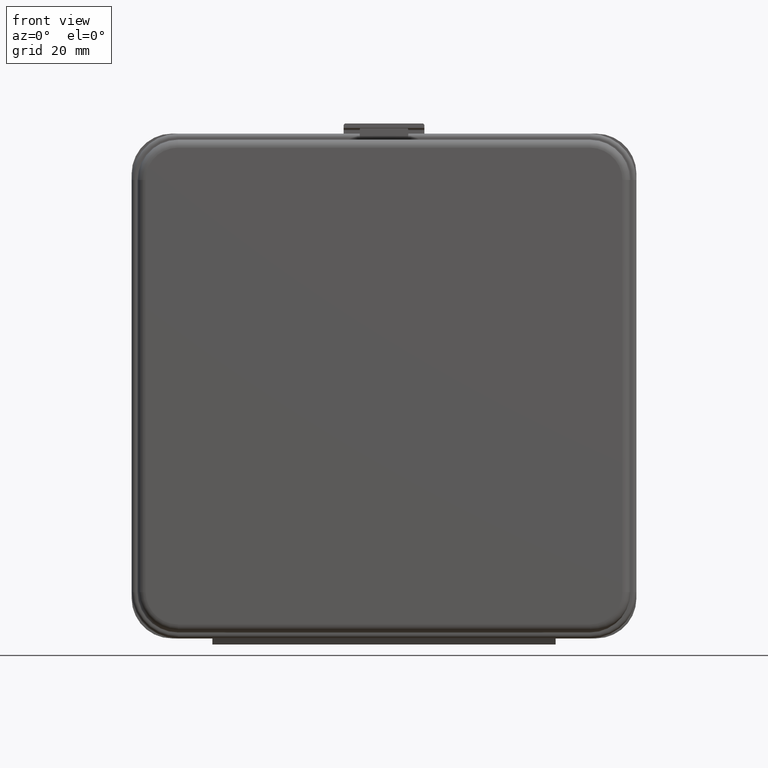
[diagram: clean part render]
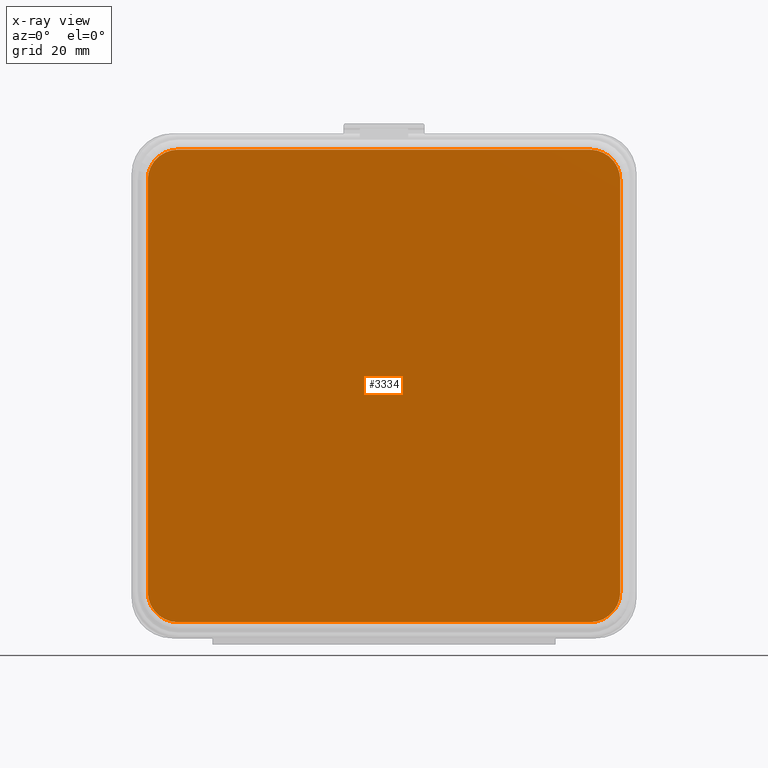
[diagram: x-ray — body ghosted, one internal face saturated and labeled with its STEP entity id]
A machine part, front view, then the same camera in x-ray: the body is ghosted and one INTERNAL B-rep face — a face not visible from any outside direction — is saturated and labeled: STEP entity #3334.
In plain terms, the highlighted planar face has unit normal (0, 1, 0).
Its self-contained STEP definition (entity closure, byte-faithful):
#16 = LINE ( 'NONE', #2266, #209 ) ;
#115 = CARTESIAN_POINT ( 'NONE',  ( -50.99999999999997868, 1.500000000000000000, 58.50000000000000000 ) ) ;
#120 = CARTESIAN_POINT ( 'NONE',  ( 50.99999999999997868, 1.500000000000000000, -58.50000000000000000 ) ) ;
#209 = VECTOR ( 'NONE', #2969, 1000.000000000000000 ) ;
#239 = ORIENTED_EDGE ( 'NONE', *, *, #3122, .T. ) ;
#301 = VERTEX_POINT ( 'NONE', #3626 ) ;
#312 = ORIENTED_EDGE ( 'NONE', *, *, #2889, .T. ) ;
#321 = CARTESIAN_POINT ( 'NONE',  ( -51.00000000000000711, 1.500000000000000000, -58.50000000000000000 ) ) ;
#359 = DIRECTION ( 'NONE',  ( 0.0000000000000000000, 0.0000000000000000000, 1.000000000000000000 ) ) ;
#503 = DIRECTION ( 'NONE',  ( 0.0000000000000000000, 0.0000000000000000000, 1.000000000000000000 ) ) ;
#526 = ORIENTED_EDGE ( 'NONE', *, *, #3901, .T. ) ;
#536 = VERTEX_POINT ( 'NONE', #120 ) ;
#596 = CARTESIAN_POINT ( 'NONE',  ( 0.0000000000000000000, 1.500000000000000000, 0.0000000000000000000 ) ) ;
#619 = DIRECTION ( 'NONE',  ( 0.0000000000000000000, -0.0000000000000000000, 1.000000000000000000 ) ) ;
#659 = DIRECTION ( 'NONE',  ( 0.0000000000000000000, 0.0000000000000000000, 1.000000000000000000 ) ) ;
#666 = VERTEX_POINT ( 'NONE', #321 ) ;
#1048 = CARTESIAN_POINT ( 'NONE',  ( -51.00000000000000000, 1.500000000000000000, -51.00000000000000000 ) ) ;
#1057 = VERTEX_POINT ( 'NONE', #3303 ) ;
#1134 = VECTOR ( 'NONE', #3837, 1000.000000000000000 ) ;
#1143 = CARTESIAN_POINT ( 'NONE',  ( 58.50000000000000000, 1.500000000000000000, -51.00000000000000711 ) ) ;
#1425 = CARTESIAN_POINT ( 'NONE',  ( 51.00000000000003553, 1.500000000000000000, 58.50000000000000000 ) ) ;
#1474 = VECTOR ( 'NONE', #4276, 1000.000000000000000 ) ;
#1487 = AXIS2_PLACEMENT_3D ( 'NONE', #1048, #2036, #659 ) ;
#1496 = DIRECTION ( 'NONE',  ( 1.000000000000000000, -0.0000000000000000000, 0.0000000000000000000 ) ) ;
#1634 = DIRECTION ( 'NONE',  ( 0.0000000000000000000, 1.000000000000000000, 0.0000000000000000000 ) ) ;
#1654 = PLANE ( 'NONE',  #3783 ) ;
#1762 = CIRCLE ( 'NONE', #1487, 7.500000000000000000 ) ;
#1858 = DIRECTION ( 'NONE',  ( 0.0000000000000000000, 1.000000000000000000, 0.0000000000000000000 ) ) ;
#1880 = CARTESIAN_POINT ( 'NONE',  ( 51.00000000000000711, 1.500000000000000000, -51.00000000000000000 ) ) ;
#1905 = DIRECTION ( 'NONE',  ( 0.0000000000000000000, 1.000000000000000000, 0.0000000000000000000 ) ) ;
#1937 = CARTESIAN_POINT ( 'NONE',  ( -51.00000000000000711, 1.500000000000000000, -58.50000000000000000 ) ) ;
#2024 = CIRCLE ( 'NONE', #2098, 7.500000000000000000 ) ;
#2036 = DIRECTION ( 'NONE',  ( 0.0000000000000000000, 1.000000000000000000, 0.0000000000000000000 ) ) ;
#2088 = CARTESIAN_POINT ( 'NONE',  ( -50.99999999999997868, 1.500000000000000000, 51.00000000000000000 ) ) ;
#2098 = AXIS2_PLACEMENT_3D ( 'NONE', #4198, #1858, #503 ) ;
#2116 = EDGE_CURVE ( 'NONE', #2537, #3095, #3814, .T. ) ;
#2181 = CARTESIAN_POINT ( 'NONE',  ( 51.00000000000003553, 1.500000000000000000, 58.50000000000000000 ) ) ;
#2266 = CARTESIAN_POINT ( 'NONE',  ( -58.49999999999997868, 1.500000000000000000, 50.99999999999996447 ) ) ;
#2436 = EDGE_CURVE ( 'NONE', #2757, #536, #3798, .T. ) ;
#2497 = LINE ( 'NONE', #2806, #1134 ) ;
#2537 = VERTEX_POINT ( 'NONE', #115 ) ;
#2571 = DIRECTION ( 'NONE',  ( 0.0000000000000000000, 0.0000000000000000000, 1.000000000000000000 ) ) ;
#2609 = FACE_OUTER_BOUND ( 'NONE', #2813, .T. ) ;
#2723 = EDGE_CURVE ( 'NONE', #1057, #2757, #2497, .T. ) ;
#2737 = ORIENTED_EDGE ( 'NONE', *, *, #2723, .T. ) ;
#2757 = VERTEX_POINT ( 'NONE', #1143 ) ;
#2799 = AXIS2_PLACEMENT_3D ( 'NONE', #1880, #1905, #2571 ) ;
#2806 = CARTESIAN_POINT ( 'NONE',  ( 58.50000000000000000, 1.500000000000000000, -51.00000000000000711 ) ) ;
#2813 = EDGE_LOOP ( 'NONE', ( #526, #312, #3959, #3842, #4142, #239, #2737, #3612 ) ) ;
#2889 = EDGE_CURVE ( 'NONE', #666, #3485, #1762, .T. ) ;
#2969 = DIRECTION ( 'NONE',  ( 1.706285386206695733E-16, -0.0000000000000000000, 1.000000000000000000 ) ) ;
#3095 = VERTEX_POINT ( 'NONE', #1425 ) ;
#3122 = EDGE_CURVE ( 'NONE', #3095, #1057, #2024, .T. ) ;
#3158 = AXIS2_PLACEMENT_3D ( 'NONE', #2088, #3428, #359 ) ;
#3303 = CARTESIAN_POINT ( 'NONE',  ( 58.50000000000002842, 1.500000000000000000, 50.99999999999996447 ) ) ;
#3334 = ADVANCED_FACE ( 'NONE', ( #2609 ), #1654, .T. ) ;
#3384 = EDGE_CURVE ( 'NONE', #3485, #301, #16, .T. ) ;
#3428 = DIRECTION ( 'NONE',  ( 0.0000000000000000000, 1.000000000000000000, 0.0000000000000000000 ) ) ;
#3485 = VERTEX_POINT ( 'NONE', #4262 ) ;
#3602 = LINE ( 'NONE', #1937, #1474 ) ;
#3612 = ORIENTED_EDGE ( 'NONE', *, *, #2436, .T. ) ;
#3626 = CARTESIAN_POINT ( 'NONE',  ( -58.49999999999997868, 1.500000000000000000, 50.99999999999997158 ) ) ;
#3783 = AXIS2_PLACEMENT_3D ( 'NONE', #596, #1634, #619 ) ;
#3798 = CIRCLE ( 'NONE', #2799, 7.500000000000000000 ) ;
#3814 = LINE ( 'NONE', #2181, #4173 ) ;
#3837 = DIRECTION ( 'NONE',  ( -2.275047181608927151E-16, 0.0000000000000000000, -1.000000000000000000 ) ) ;
#3842 = ORIENTED_EDGE ( 'NONE', *, *, #4015, .T. ) ;
#3901 = EDGE_CURVE ( 'NONE', #536, #666, #3602, .T. ) ;
#3959 = ORIENTED_EDGE ( 'NONE', *, *, #3384, .T. ) ;
#4015 = EDGE_CURVE ( 'NONE', #301, #2537, #4265, .T. ) ;
#4142 = ORIENTED_EDGE ( 'NONE', *, *, #2116, .T. ) ;
#4173 = VECTOR ( 'NONE', #1496, 1000.000000000000000 ) ;
#4198 = CARTESIAN_POINT ( 'NONE',  ( 51.00000000000002842, 1.500000000000000000, 50.99999999999999289 ) ) ;
#4262 = CARTESIAN_POINT ( 'NONE',  ( -58.50000000000000000, 1.500000000000000000, -51.00000000000000711 ) ) ;
#4265 = CIRCLE ( 'NONE', #3158, 7.500000000000000000 ) ;
#4276 = DIRECTION ( 'NONE',  ( -1.000000000000000000, 0.0000000000000000000, 0.0000000000000000000 ) ) ;